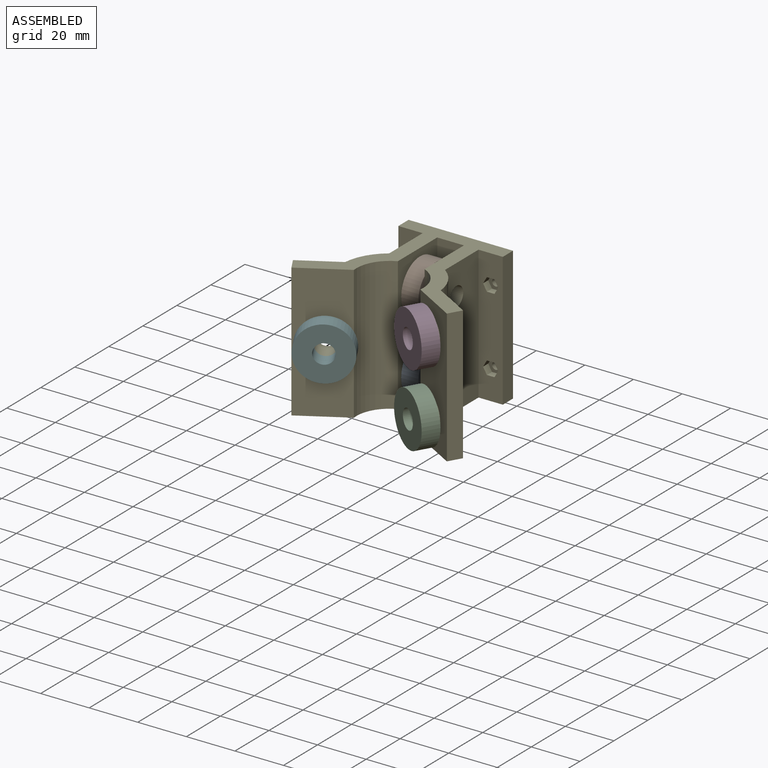
[diagram: assembled view]
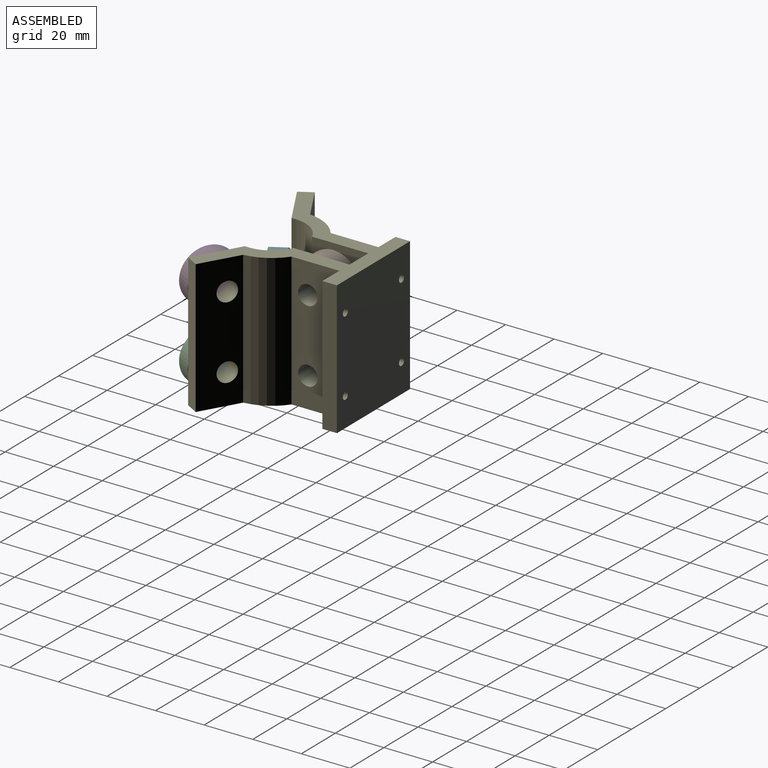
[diagram: assembled view, second angle]
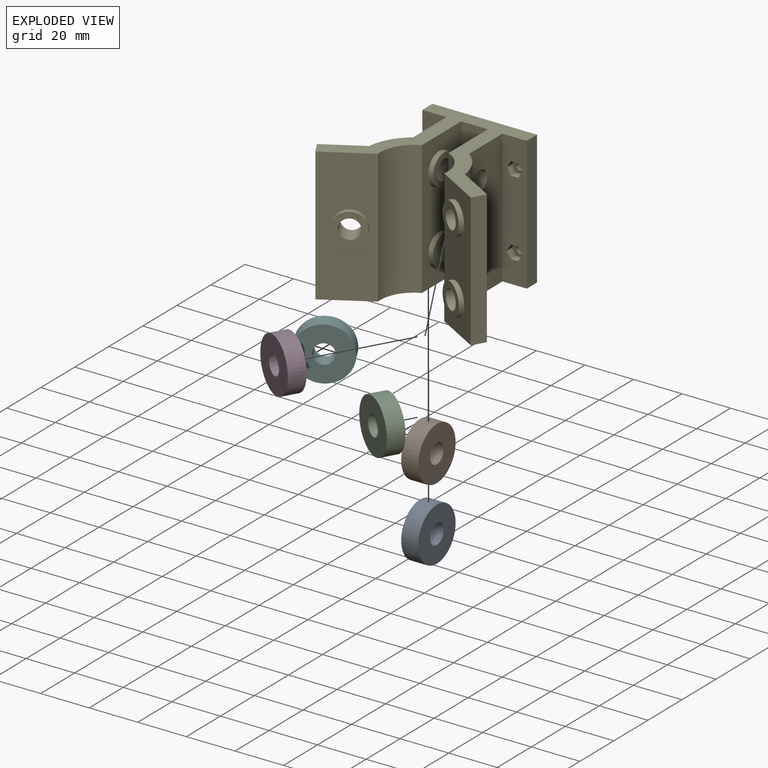
[diagram: exploded view]
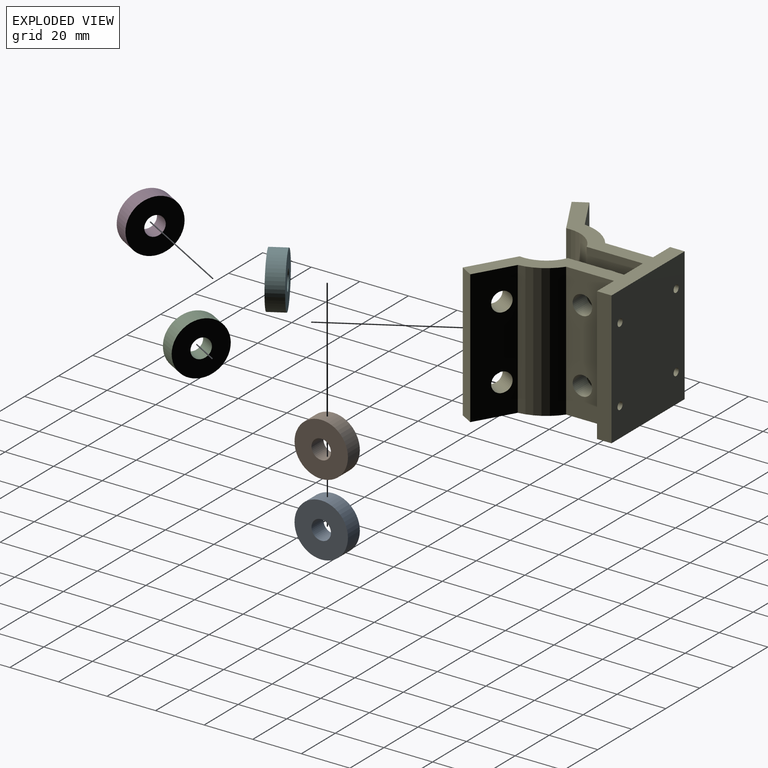
[diagram: exploded view, second angle]
ASSEMBLY  parts=6 mates=5
PART A: 4 faces, bbox 22x22x7 mm
  f0: cylinder r=4mm len=8mm, axis (0,0,-1), area 175.9mm2, adj f2,f3
  f1: cylinder r=11mm len=22mm, axis (0,0,-1), area 483.8mm2, adj f2,f3
  f2: plane 22x22mm, normal (0,0,1), area 329.9mm2, adj f0,f1
  f3: plane 22x22mm, normal (0,0,-1), area 329.9mm2, adj f0,f1
PART B: same geometry as A
PART C: same geometry as A
PART D: same geometry as A
PART E: 75 faces, bbox 70x53.9x55 mm
  f0: plane 55x10mm, normal (0,-1,0), area 499.5mm2, adj f13,f14,f22,f23,f61,f62,f63,f64
  f1: plane 55x10mm, normal (0,-1,0), area 499.5mm2, adj f16,f17,f22,f23,f47,f48,f49,f50
  f2: cylinder r=1.5mm len=3mm, axis (0,1,0), area 28.3mm2, adj f15,f60
  f3: cylinder r=1.5mm len=3mm, axis (0,1,0), area 28.3mm2, adj f15,f53
  f4: cylinder r=13.78mm len=55mm, axis (0,0,-1), area 964.4mm2, adj f5,f21,f22,f23
  f5: plane 55x23.15mm, normal (1,0,0), area 1007.5mm2, adj f4,f6,f22,f23,f38,f40
  f6: plane 55x11mm, normal (0,-1,0), area 605mm2, adj f5,f7,f22,f23
  f7: plane 55x23.15mm, normal (-1,0,0), area 1007.5mm2, adj f6,f8,f22,f23,f42,f44
  f8: cylinder r=13.78mm len=55mm, axis (0,0,-1), area 964.4mm2, adj f7,f9,f22,f23
  f9: plane 55x18.31mm, normal (-0.5,-0.87,0), area 897.5mm2, adj f8,f10,f22,f23,f34,f36
  f10: plane 55x5.2mm, normal (0.87,-0.5,0), area 330mm2, adj f9,f11,f22,f23
  f11: plane 55x15.32mm, normal (0.5,0.87,0), area 872.3mm2, adj f10,f12,f22,f23,f26,f27
  f12: cylinder r=19.78mm len=55mm, axis (0,0,-1), area 927.9mm2, adj f11,f13,f22,f23
  f13: plane 55x19.69mm, normal (1,0,0), area 982.3mm2, adj f0,f12,f22,f23,f29,f32
  f14: plane 55x6mm, normal (1,0,0), area 330mm2, adj f0,f15,f22,f23
  f15: plane 55x43mm, normal (0,1,0), area 2336.7mm2, adj f2,f3,f14,f16,f22,f23,f45,f46
  f16: plane 55x6mm, normal (-1,0,0), area 330mm2, adj f1,f15,f22,f23
  f17: plane 55x19.69mm, normal (-1,0,0), area 982.3mm2, adj f1,f18,f22,f23,f30,f31
  f18: cylinder r=19.78mm len=55mm, axis (0,0,-1), area 927.9mm2, adj f17,f19,f22,f23
  f19: plane 55x15.32mm, normal (-0.5,0.87,0), area 922.6mm2, adj f18,f20,f22,f23,f28
  f20: plane 55x5.2mm, normal (-0.87,-0.5,0), area 330mm2, adj f19,f21,f22,f23
  f21: plane 55x18.31mm, normal (0.5,-0.87,0), area 1030.3mm2, adj f4,f20,f22,f23,f24
  f22: plane 70x53.9mm, normal (0,0,1), area 953.6mm2, adj f0,f1,f4,f5,f6,f7,f8,f9
  f23: plane 70x53.9mm, normal (0,0,-1), area 953.6mm2, adj f0,f1,f4,f5,f6,f7,f8,f9
  f24: cylinder r=6.5mm len=13mm, axis (-0.5,0.87,0), area 81.7mm2, adj f21,f25
  f25: plane 13x11.26mm, normal (0.5,-0.87,0), area 82.5mm2, adj f24,f28
  f26: cylinder r=4mm len=10.93mm, axis (-0.5,-0.87,0), area 201.1mm2, adj f11,f33
  f27: cylinder r=4mm len=10.93mm, axis (-0.5,-0.87,0), area 201.1mm2, adj f11,f35
  f28: cylinder r=4mm len=10.93mm, axis (0.5,-0.87,0), area 201.1mm2, adj f19,f25
  f29: cylinder r=4mm len=8mm, axis (-1,0,0), area 201.1mm2, adj f13,f43
  f30: cylinder r=4mm len=8mm, axis (1,0,0), area 201.1mm2, adj f17,f39
  f31: cylinder r=4mm len=8mm, axis (1,0,0), area 201.1mm2, adj f17,f37
  f32: cylinder r=4mm len=8mm, axis (-1,0,0), area 201.1mm2, adj f13,f41
  f33: plane 13x11.26mm, normal (-0.5,-0.87,0), area 82.5mm2, adj f26,f34
  f34: cylinder r=6.5mm len=13mm, axis (0.5,0.87,0), area 81.7mm2, adj f9,f33
  f35: plane 13x11.26mm, normal (-0.5,-0.87,0), area 82.5mm2, adj f27,f36
  f36: cylinder r=6.5mm len=13mm, axis (0.5,0.87,0), area 81.7mm2, adj f9,f35
  f37: plane 13x13mm, normal (1,0,0), area 82.5mm2, adj f31,f38
  f38: cylinder r=6.5mm len=13mm, axis (-1,0,0), area 81.7mm2, adj f5,f37
  f39: plane 13x13mm, normal (1,0,0), area 82.5mm2, adj f30,f40
  f40: cylinder r=6.5mm len=13mm, axis (-1,0,0), area 81.7mm2, adj f5,f39
  f41: plane 13x13mm, normal (-1,0,0), area 82.5mm2, adj f32,f42
  f42: cylinder r=6.5mm len=13mm, axis (1,0,0), area 81.7mm2, adj f7,f41
  f43: plane 13x13mm, normal (-1,0,0), area 82.5mm2, adj f29,f44
  f44: cylinder r=6.5mm len=13mm, axis (1,0,0), area 81.7mm2, adj f7,f43
  f45: cylinder r=1.5mm len=3mm, axis (0,1,0), area 28.3mm2, adj f15,f74
  f46: cylinder r=1.5mm len=3mm, axis (0,1,0), area 28.3mm2, adj f15,f67
  f47: plane 3.12x3mm, normal (0,0,-1), area 9.4mm2, adj f1,f48,f52,f53
  f48: plane 3x2.7mm, normal (0.87,0,-0.5), area 9.4mm2, adj f1,f47,f49,f53
  f49: plane 3x2.7mm, normal (0.87,0,0.5), area 9.4mm2, adj f1,f48,f50,f53
  f50: plane 3.12x3mm, normal (0,0,1), area 9.4mm2, adj f1,f49,f51,f53
  f51: plane 3x2.7mm, normal (-0.87,0,0.5), area 9.4mm2, adj f1,f50,f52,f53
  f52: plane 3x2.7mm, normal (-0.87,0,-0.5), area 9.4mm2, adj f1,f47,f51,f53
  f53: plane 6.24x5.4mm, normal (0,-1,0), area 18.2mm2, adj f3,f47,f48,f49,f50,f51,f52
  f54: plane 3.12x3mm, normal (0,0,1), area 9.4mm2, adj f1,f55,f59,f60
  f55: plane 3x2.7mm, normal (-0.87,0,0.5), area 9.4mm2, adj f1,f54,f56,f60
  f56: plane 3x2.7mm, normal (-0.87,0,-0.5), area 9.4mm2, adj f1,f55,f57,f60
  f57: plane 3.12x3mm, normal (0,0,-1), area 9.4mm2, adj f1,f56,f58,f60
  f58: plane 3x2.7mm, normal (0.87,0,-0.5), area 9.4mm2, adj f1,f57,f59,f60
  f59: plane 3x2.7mm, normal (0.87,0,0.5), area 9.4mm2, adj f1,f54,f58,f60
  f60: plane 6.24x5.4mm, normal (0,-1,0), area 18.2mm2, adj f2,f54,f55,f56,f57,f58,f59
  f61: plane 3.12x3mm, normal (0,0,-1), area 9.4mm2, adj f0,f62,f66,f67
  f62: plane 3x2.7mm, normal (0.87,0,-0.5), area 9.4mm2, adj f0,f61,f63,f67
  f63: plane 3x2.7mm, normal (0.87,0,0.5), area 9.4mm2, adj f0,f62,f64,f67
  f64: plane 3.12x3mm, normal (0,0,1), area 9.4mm2, adj f0,f63,f65,f67
  f65: plane 3x2.7mm, normal (-0.87,0,0.5), area 9.4mm2, adj f0,f64,f66,f67
  f66: plane 3x2.7mm, normal (-0.87,0,-0.5), area 9.4mm2, adj f0,f61,f65,f67
  f67: plane 6.24x5.4mm, normal (0,-1,0), area 18.2mm2, adj f46,f61,f62,f63,f64,f65,f66
  f68: plane 3.12x3mm, normal (0,0,-1), area 9.4mm2, adj f0,f69,f73,f74
  f69: plane 3x2.7mm, normal (0.87,0,-0.5), area 9.4mm2, adj f0,f68,f70,f74
  f70: plane 3x2.7mm, normal (0.87,0,0.5), area 9.4mm2, adj f0,f69,f71,f74
  f71: plane 3.12x3mm, normal (0,0,1), area 9.4mm2, adj f0,f70,f72,f74
  f72: plane 3x2.7mm, normal (-0.87,0,0.5), area 9.4mm2, adj f0,f71,f73,f74
  f73: plane 3x2.7mm, normal (-0.87,0,-0.5), area 9.4mm2, adj f0,f68,f72,f74
  f74: plane 6.24x5.4mm, normal (0,-1,0), area 18.2mm2, adj f45,f68,f69,f70,f71,f72,f73
PART F: same geometry as A
PLACE A rot(axis=(0.58,0.58,0.58),120deg) t=(5.07,-6.26,-1.38)mm
PLACE B rot(axis=(0,-1,0),90deg) t=(12.07,-119.5,141.85)mm
PLACE C rot(axis=(-0.94,0.25,-0.25),93.8deg) t=(73.57,-125.66,114.87)mm
PLACE D rot(axis=(-0.94,0.25,-0.25),93.8deg) t=(73.57,-125.66,144.87)mm
PLACE E t=(8.57,-84.09,44.25)mm
PLACE F rot(axis=(-0.94,-0.25,0.25),93.8deg) t=(39.02,-70.55,129.87)mm
MATE planar D.f0 <-> E.f34  axis (0.5,0.87,0) through (29.35,-92.04,86.75)mm
MATE planar C.f0 <-> E.f36  axis (0.5,0.87,0) through (29.35,-92.04,56.75)mm
MATE planar B.f0 <-> E.f30  axis (-1,0,0) through (5.07,-61.37,86.75)mm
MATE planar A.f0 <-> E.f42  axis (1,0,0) through (12.07,-61.37,56.75)mm
MATE planar F.f0 <-> E.f24  axis (-0.5,0.87,0) through (-12.21,-92.04,71.75)mm
